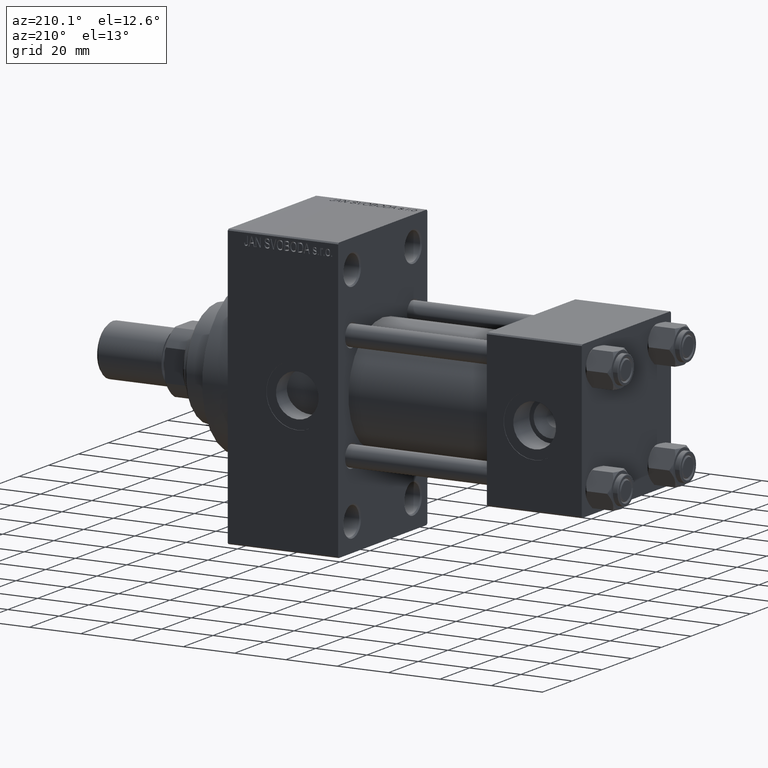
[diagram: clean part render]
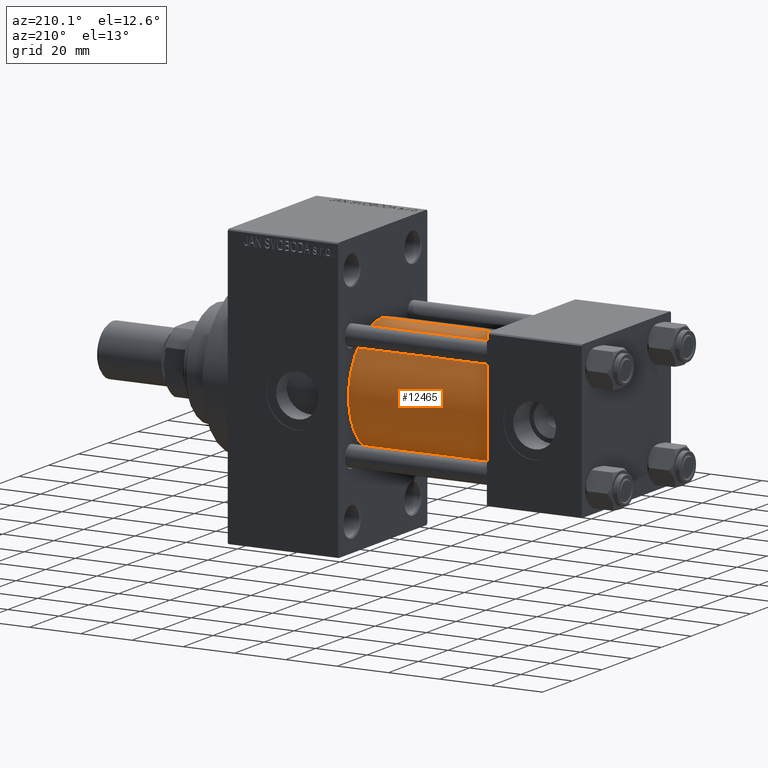
[diagram: same view with one face highlighted and labeled with its STEP entity id]
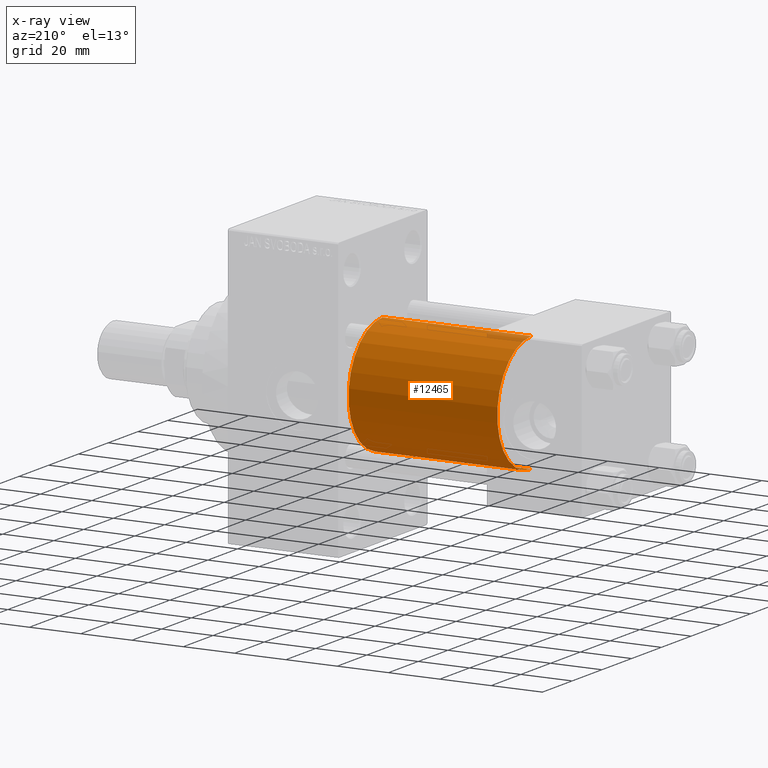
[diagram: x-ray of the same camera — body ghosted, the highlighted face saturated]
A machine part, auxiliary view. The second image highlights one B-rep face of the part: STEP entity #12465.
The next image is the same camera in x-ray: the body ghosted, the highlighted face saturated — about 2% of this face is hidden behind the body in this view.
In plain terms, the highlighted cylindrical surface (partial cylindrical patch) has radius 23 mm, axis along (-1, -0, -0).
Its self-contained STEP definition (entity closure, byte-faithful):
#9 = CARTESIAN_POINT ( 'NONE',  ( 37.00000000000000000, -2.602085213965210642E-15, 0.000000000000000000 ) ) ;
#963 = DIRECTION ( 'NONE',  ( -1.000000000000000000, -0.000000000000000000, -0.000000000000000000 ) ) ;
#3504 = FACE_OUTER_BOUND ( 'NONE', #20594, .T. ) ;
#3639 = CARTESIAN_POINT ( 'NONE',  ( 95.00000000000000000, -2.602085213965210642E-15, 23.00000000000000000 ) ) ;
#4061 = CARTESIAN_POINT ( 'NONE',  ( 95.00000000000000000, -2.602085213965210642E-15, 23.00000000000000000 ) ) ;
#7166 = DIRECTION ( 'NONE',  ( 0.000000000000000000, 0.000000000000000000, -1.000000000000000000 ) ) ;
#9117 = CARTESIAN_POINT ( 'NONE',  ( 95.00000000000000000, -2.602085213965210642E-15, 0.000000000000000000 ) ) ;
#12465 = ADVANCED_FACE ( 'NONE', ( #3504 ), #38437, .T. ) ;
#12469 = AXIS2_PLACEMENT_3D ( 'NONE', #9, #33544, #21045 ) ;
#14861 = ORIENTED_EDGE ( 'NONE', *, *, #33682, .T. ) ;
#15136 = ORIENTED_EDGE ( 'NONE', *, *, #29953, .F. ) ;
#17793 = ORIENTED_EDGE ( 'NONE', *, *, #38670, .F. ) ;
#19696 = CARTESIAN_POINT ( 'NONE',  ( 37.00000000000000000, 2.146024240737012665E-16, -23.00000000000000000 ) ) ;
#20594 = EDGE_LOOP ( 'NONE', ( #17793, #14861, #36375, #15136 ) ) ;
#21045 = DIRECTION ( 'NONE',  ( 0.000000000000000000, 0.000000000000000000, 1.000000000000000000 ) ) ;
#23812 = DIRECTION ( 'NONE',  ( 1.000000000000000000, 0.000000000000000000, 0.000000000000000000 ) ) ;
#26763 = LINE ( 'NONE', #3639, #39082 ) ;
#27105 = CIRCLE ( 'NONE', #12469, 23.00000000000000000 ) ;
#29953 = EDGE_CURVE ( 'NONE', #45971, #42614, #26763, .T. ) ;
#31205 = DIRECTION ( 'NONE',  ( -1.000000000000000000, -0.000000000000000000, -0.000000000000000000 ) ) ;
#31532 = AXIS2_PLACEMENT_3D ( 'NONE', #9117, #23812, #7166 ) ;
#33544 = DIRECTION ( 'NONE',  ( 1.000000000000000000, -0.000000000000000000, 0.000000000000000000 ) ) ;
#33682 = EDGE_CURVE ( 'NONE', #39525, #33974, #39892, .T. ) ;
#33974 = VERTEX_POINT ( 'NONE', #19696 ) ;
#36375 = ORIENTED_EDGE ( 'NONE', *, *, #47684, .T. ) ;
#38437 = CYLINDRICAL_SURFACE ( 'NONE', #41112, 23.00000000000000000 ) ;
#38670 = EDGE_CURVE ( 'NONE', #39525, #45971, #42306, .T. ) ;
#39082 = VECTOR ( 'NONE', #963, 1000.000000000000000 ) ;
#39171 = CARTESIAN_POINT ( 'NONE',  ( 95.00000000000000000, 2.146024240737012665E-16, -23.00000000000000000 ) ) ;
#39525 = VERTEX_POINT ( 'NONE', #39742 ) ;
#39547 = CARTESIAN_POINT ( 'NONE',  ( 37.00000000000000000, -2.602085213965210642E-15, 23.00000000000000000 ) ) ;
#39652 = DIRECTION ( 'NONE',  ( -1.000000000000000000, -0.000000000000000000, -0.000000000000000000 ) ) ;
#39742 = CARTESIAN_POINT ( 'NONE',  ( 95.00000000000000000, 2.146024240737012665E-16, -23.00000000000000000 ) ) ;
#39892 = LINE ( 'NONE', #39171, #46014 ) ;
#41112 = AXIS2_PLACEMENT_3D ( 'NONE', #44988, #31205, #41359 ) ;
#41359 = DIRECTION ( 'NONE',  ( 0.000000000000000000, 0.000000000000000000, 1.000000000000000000 ) ) ;
#42306 = CIRCLE ( 'NONE', #31532, 23.00000000000000000 ) ;
#42614 = VERTEX_POINT ( 'NONE', #39547 ) ;
#44988 = CARTESIAN_POINT ( 'NONE',  ( 95.00000000000000000, -2.602085213965210642E-15, 0.000000000000000000 ) ) ;
#45971 = VERTEX_POINT ( 'NONE', #4061 ) ;
#46014 = VECTOR ( 'NONE', #39652, 1000.000000000000000 ) ;
#47684 = EDGE_CURVE ( 'NONE', #33974, #42614, #27105, .T. ) ;